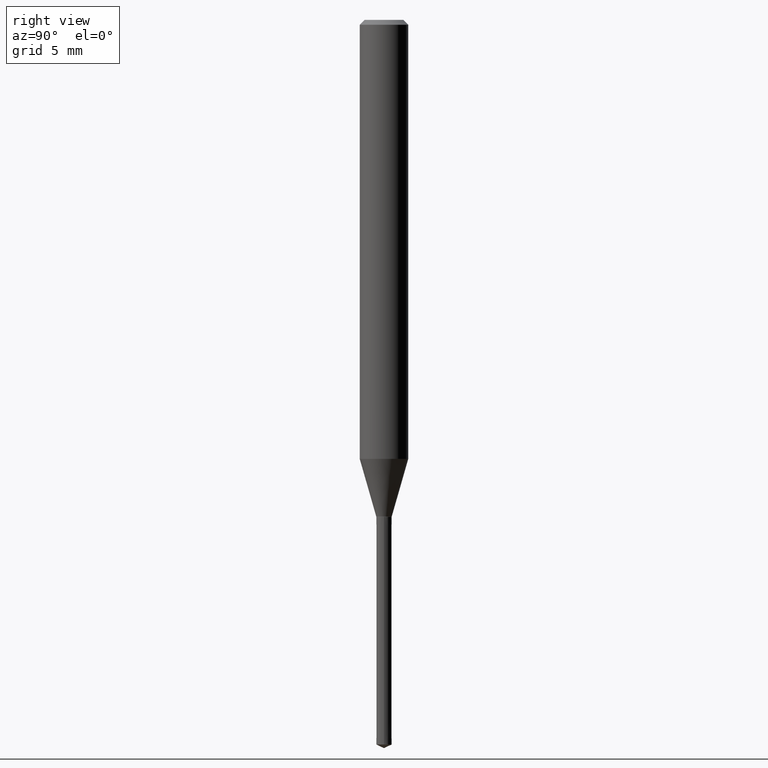
[diagram: clean part render]
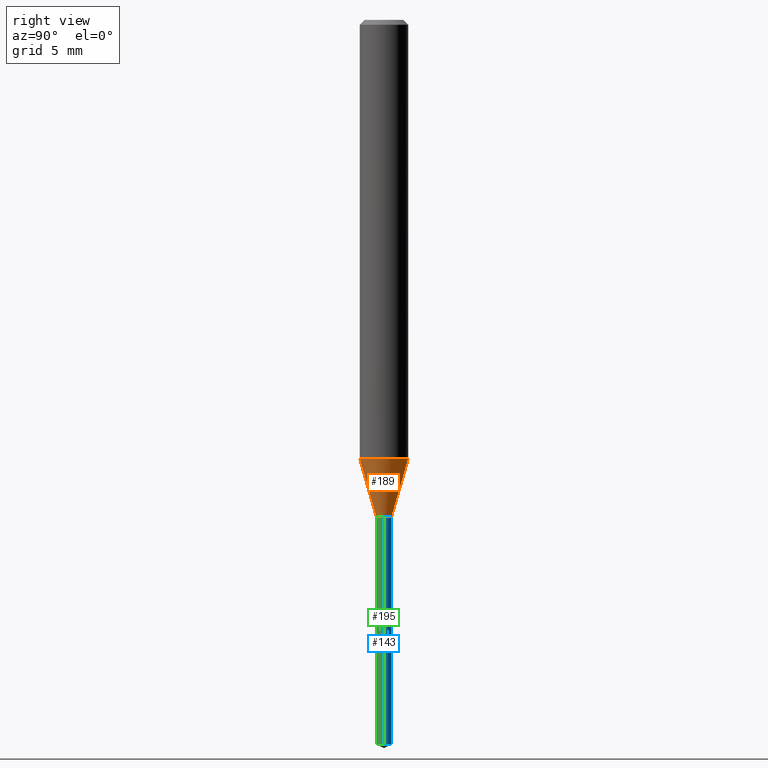
[diagram: same view with three faces highlighted in distinct colors, each labeled with its STEP entity id]
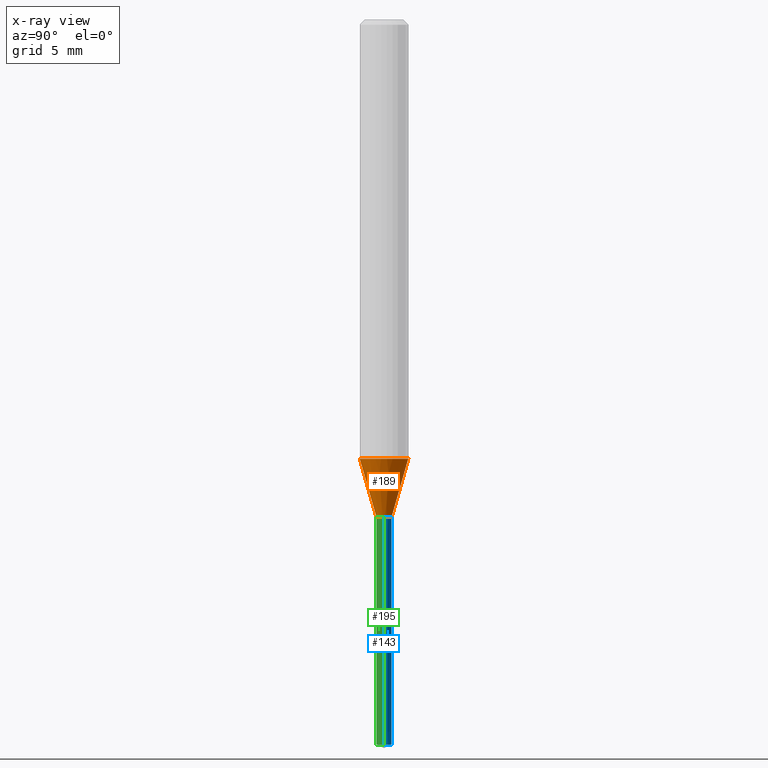
[diagram: x-ray of the same camera — body ghosted, the three highlighted faces saturated]
A machine part, right view with three faces highlighted in distinct colors.
The next image is the same camera in x-ray (body ghosted, the three faces saturated) — at least one of them is partly hidden behind the body in this view.
Their STEP definitions:

[orange] entity #189 — the highlighted conical surface has half-angle 16.002 deg.
#115=EDGE_CURVE('',#135,#137,#252,.T.);
#135=VERTEX_POINT('',#276);
#137=VERTEX_POINT('',#278);
#151=EDGE_CURVE('',#137,#153,#294,.T.);
#153=VERTEX_POINT('',#296);
#155=EDGE_CURVE('',#135,#161,#298,.T.);
#161=VERTEX_POINT('',#304);
#187=EDGE_CURVE('',#153,#161,#333,.T.);
#189=ADVANCED_FACE('',(#335),#336,.T.);
#252=LINE('',#405,#406);
#276=CARTESIAN_POINT('',(0.0,1.5,-27.125));
#278=CARTESIAN_POINT('',(0.0,0.475,-30.6991339745962));
#294=CIRCLE('',#458,0.475);
#296=CARTESIAN_POINT('',(5.81688018065629E-017,-0.475,-30.6991339745962));
#298=CIRCLE('',#463,1.5);
#304=CARTESIAN_POINT('',(1.83690953073357E-016,-1.5,-27.125));
#333=LINE('',#507,#508);
#335=FACE_OUTER_BOUND('',#510,.T.);
#336=CONICAL_SURFACE('',#511,0.9875,0.27928721316379);
#405=CARTESIAN_POINT('',(-1.2092987743996E-016,0.9875,-28.9120669872981));
#406=VECTOR('',#566,1.0);
#458=AXIS2_PLACEMENT_3D('',#628,#629,#630);
#463=AXIS2_PLACEMENT_3D('',#631,#632,#633);
#507=CARTESIAN_POINT('',(1.2092987743996E-016,-0.9875,-28.9120669872981));
#508=VECTOR('',#667,1.0);
#510=EDGE_LOOP('',(#669,#670,#671,#672));
#511=AXIS2_PLACEMENT_3D('',#673,#674,#675);
#566=DIRECTION('',(3.37587908014451E-017,-0.275670550753501,-0.961252176823159));
#628=CARTESIAN_POINT('',(0.0,0.0,-30.6991339745962));
#629=DIRECTION('',(0.0,0.0,-1.0));
#630=DIRECTION('',(0.0,1.0,0.0));
#631=CARTESIAN_POINT('',(0.0,0.0,-27.125));
#632=DIRECTION('',(0.0,0.0,-1.0));
#633=DIRECTION('',(0.0,1.0,0.0));
#667=DIRECTION('',(3.37587908014451E-017,-0.275670550753501,0.961252176823159));
#669=ORIENTED_EDGE('',*,*,#115,.F.);
#670=ORIENTED_EDGE('',*,*,#155,.T.);
#671=ORIENTED_EDGE('',*,*,#187,.F.);
#672=ORIENTED_EDGE('',*,*,#151,.F.);
#673=CARTESIAN_POINT('',(0.0,0.0,-28.9120669872981));
#674=DIRECTION('',(-0.0,-0.0,1.0));
#675=DIRECTION('',(0.0,1.0,0.0));

[blue] entity #143 — the highlighted conical surface has half-angle 0.004 deg.
#95=VERTEX_POINT('',#230);
#99=VERTEX_POINT('',#234);
#123=EDGE_CURVE('',#99,#95,#261,.T.);
#143=ADVANCED_FACE('',(#284),#285,.T.);
#149=EDGE_CURVE('',#201,#181,#292,.T.);
#167=EDGE_CURVE('',#201,#99,#311,.T.);
#181=VERTEX_POINT('',#327);
#201=VERTEX_POINT('',#350);
#205=EDGE_CURVE('',#95,#181,#355,.T.);
#230=CARTESIAN_POINT('',(0.475,5.81688018065629E-017,-44.77850386));
#234=CARTESIAN_POINT('',(-0.475,0.0,-44.77850386));
#261=CIRCLE('',#419,0.475);
#284=FACE_OUTER_BOUND('',#445,.T.);
#285=CONICAL_SURFACE('',#446,0.4755,7.10302748262509E-005);
#292=CIRCLE('',#455,0.476);
#311=LINE('',#480,#481);
#327=CARTESIAN_POINT('',(0.476,5.82912624419452E-017,-30.7));
#350=CARTESIAN_POINT('',(-0.476,0.0,-30.7));
#355=LINE('',#532,#533);
#419=AXIS2_PLACEMENT_3D('',#578,#579,#580);
#445=EDGE_LOOP('',(#607,#608,#609,#610));
#446=AXIS2_PLACEMENT_3D('',#611,#612,#613);
#455=AXIS2_PLACEMENT_3D('',#625,#626,#627);
#480=CARTESIAN_POINT('',(-0.4755,-5.8230032124254E-017,-37.73925193));
#481=VECTOR('',#644,1.0);
#532=CARTESIAN_POINT('',(0.4755,5.8230032124254E-017,-37.73925193));
#533=VECTOR('',#702,1.0);
#578=CARTESIAN_POINT('',(0.0,0.0,-44.77850386));
#579=DIRECTION('',(0.0,0.0,-1.0));
#580=DIRECTION('',(-1.0,0.0,0.0));
#607=ORIENTED_EDGE('',*,*,#167,.F.);
#608=ORIENTED_EDGE('',*,*,#149,.T.);
#609=ORIENTED_EDGE('',*,*,#205,.F.);
#610=ORIENTED_EDGE('',*,*,#123,.F.);
#611=CARTESIAN_POINT('',(0.0,0.0,-37.73925193));
#612=DIRECTION('',(-0.0,-0.0,1.0));
#613=DIRECTION('',(-1.0,0.0,0.0));
#625=CARTESIAN_POINT('',(0.0,0.0,-30.7));
#626=DIRECTION('',(0.0,0.0,-1.0));
#627=DIRECTION('',(-1.0,0.0,0.0));
#644=DIRECTION('',(7.10302747665227E-005,8.6984125792833E-021,-0.99999999747735));
#702=DIRECTION('',(7.10302747665227E-005,8.6984125792833E-021,0.99999999747735));

[green] entity #195 — the highlighted conical surface has half-angle 0.004 deg.
#95=VERTEX_POINT('',#230);
#97=EDGE_CURVE('',#181,#201,#232,.T.);
#99=VERTEX_POINT('',#234);
#147=EDGE_CURVE('',#95,#99,#290,.T.);
#167=EDGE_CURVE('',#201,#99,#311,.T.);
#181=VERTEX_POINT('',#327);
#195=ADVANCED_FACE('',(#343),#344,.T.);
#201=VERTEX_POINT('',#350);
#205=EDGE_CURVE('',#95,#181,#355,.T.);
#230=CARTESIAN_POINT('',(0.475,5.81688018065629E-017,-44.77850386));
#232=CIRCLE('',#378,0.476);
#234=CARTESIAN_POINT('',(-0.475,0.0,-44.77850386));
#290=CIRCLE('',#452,0.475);
#311=LINE('',#480,#481);
#327=CARTESIAN_POINT('',(0.476,5.82912624419452E-017,-30.7));
#343=FACE_OUTER_BOUND('',#518,.T.);
#344=CONICAL_SURFACE('',#519,0.4755,7.10302748262509E-005);
#350=CARTESIAN_POINT('',(-0.476,0.0,-30.7));
#355=LINE('',#532,#533);
#378=AXIS2_PLACEMENT_3D('',#539,#540,#541);
#452=AXIS2_PLACEMENT_3D('',#622,#623,#624);
#480=CARTESIAN_POINT('',(-0.4755,-5.8230032124254E-017,-37.73925193));
#481=VECTOR('',#644,1.0);
#518=EDGE_LOOP('',(#685,#686,#687,#688));
#519=AXIS2_PLACEMENT_3D('',#689,#690,#691);
#532=CARTESIAN_POINT('',(0.4755,5.8230032124254E-017,-37.73925193));
#533=VECTOR('',#702,1.0);
#539=CARTESIAN_POINT('',(0.0,0.0,-30.7));
#540=DIRECTION('',(0.0,0.0,-1.0));
#541=DIRECTION('',(-1.0,0.0,0.0));
#622=CARTESIAN_POINT('',(0.0,0.0,-44.77850386));
#623=DIRECTION('',(0.0,0.0,-1.0));
#624=DIRECTION('',(-1.0,0.0,0.0));
#644=DIRECTION('',(7.10302747665227E-005,8.6984125792833E-021,-0.99999999747735));
#685=ORIENTED_EDGE('',*,*,#167,.T.);
#686=ORIENTED_EDGE('',*,*,#147,.F.);
#687=ORIENTED_EDGE('',*,*,#205,.T.);
#688=ORIENTED_EDGE('',*,*,#97,.T.);
#689=CARTESIAN_POINT('',(0.0,0.0,-37.73925193));
#690=DIRECTION('',(-0.0,-0.0,1.0));
#691=DIRECTION('',(-1.0,0.0,0.0));
#702=DIRECTION('',(7.10302747665227E-005,8.6984125792833E-021,0.99999999747735));